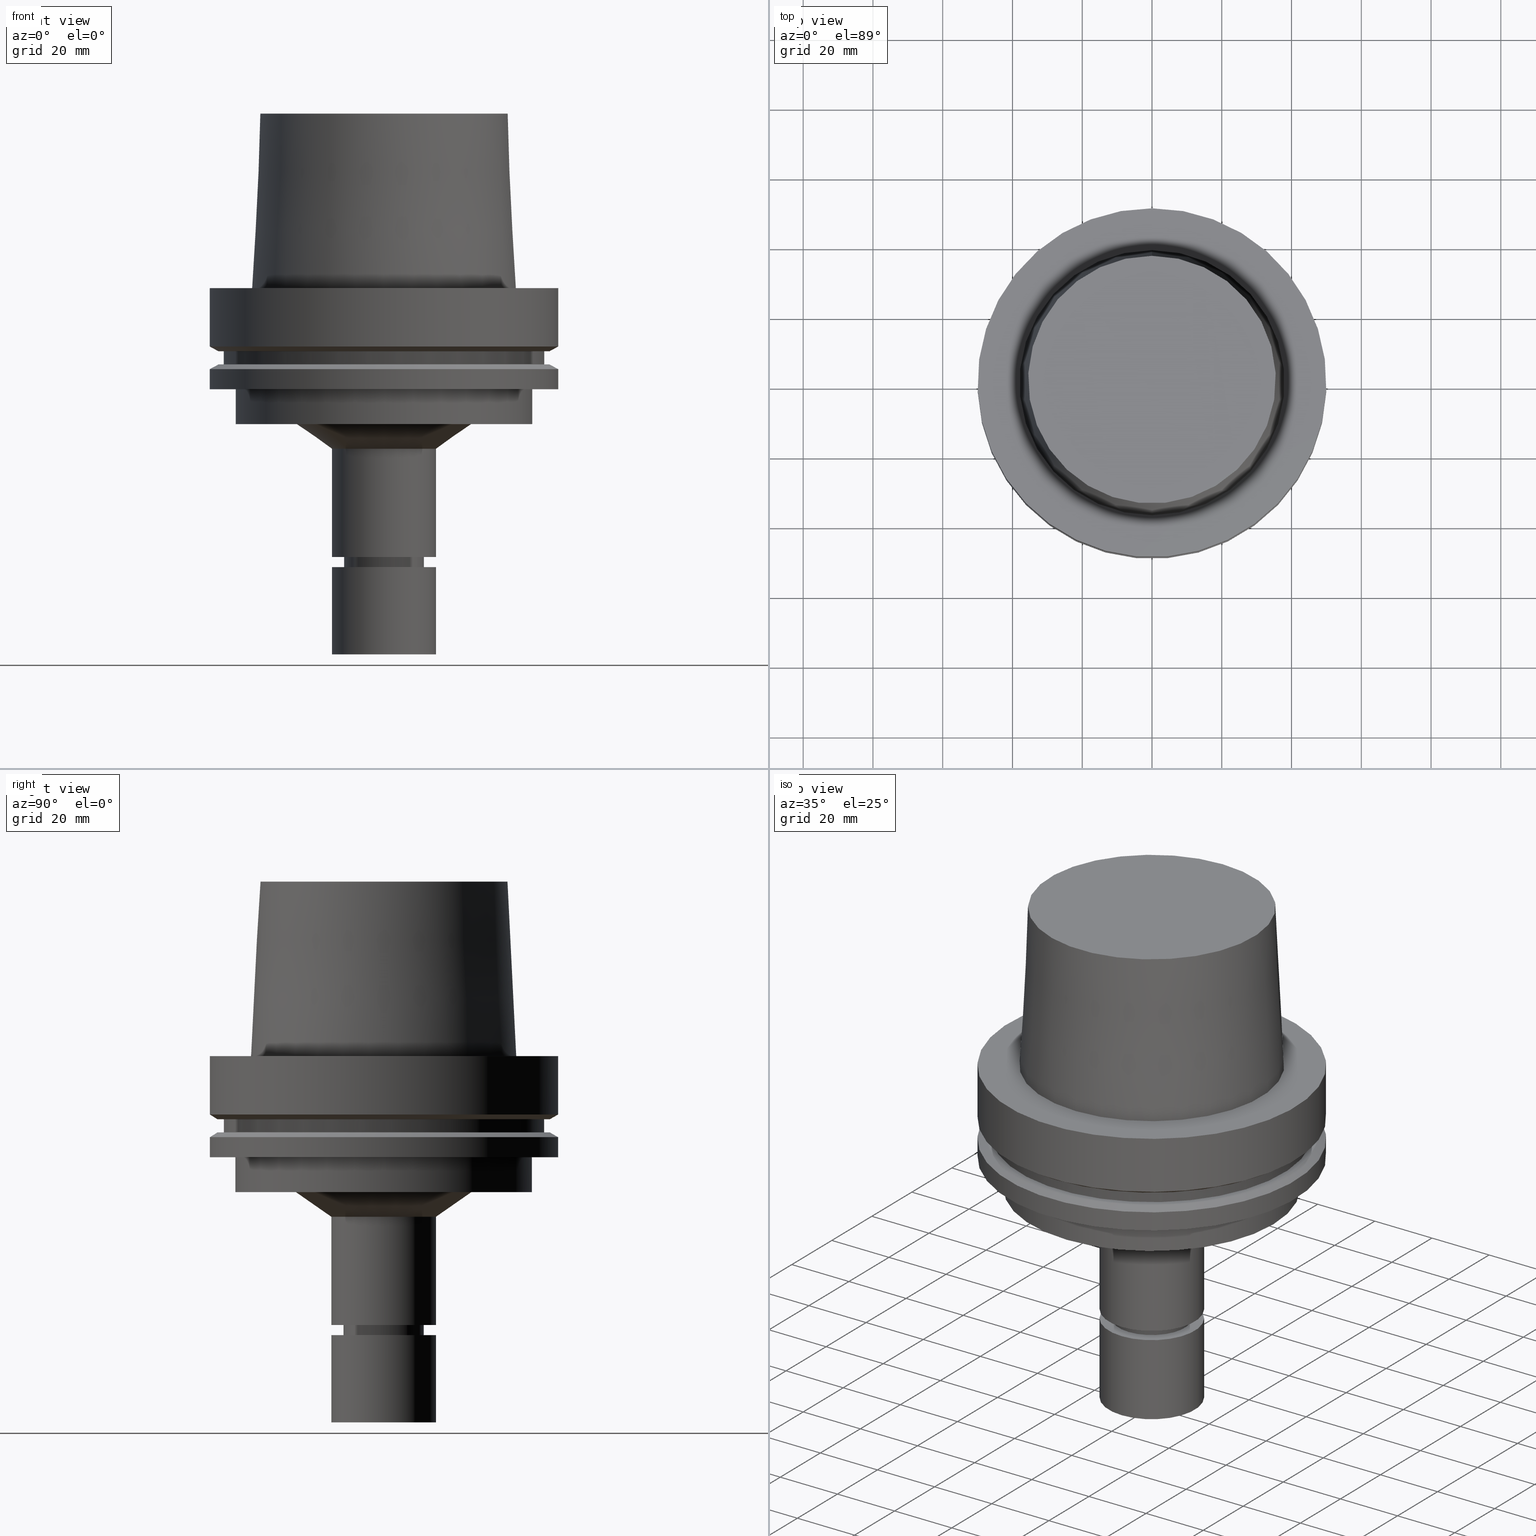
[diagram: canonical four-view strip — front | top / right | iso, engineering-drawing reading convention]
A machine part, canonical four-view strip (front | top / right | iso — engineering-drawing reading convention). The complete STEP part file that produces these views, byte-faithful:
ISO-10303-21;
HEADER;
FILE_DESCRIPTION((''),'1');
FILE_NAME('U:/Translate/02_3D_Field-HP\X2\FF71FF6FFF8CFF9F5916\X0\2013/02_Step_Field-HP\X2\FF71FF6FFF8CFF9F5916\X0\2013/HSK-A100-MEGAER16-105NL.stp','2016-06-22T01:12:14',(''),(''),'Spatial Interop R21 SP3','Kubotek KeyCreator 2011 V10.0.2 (22737)',' ');
FILE_SCHEMA(('automotive_design'));
ENDSEC;
DATA;
#1=MECHANICAL_DESIGN_GEOMETRIC_PRESENTATION_REPRESENTATION(' ',(#14,#15,#16,#17,#18,#19,#20,#21,#22,#23,#24,#25,#26,#27,#28,#29,#30,#31,#32,#33,#34,#35,#36,#37,#38,#39,#40,#41,#42,#43,#44,#45,#46,#47,#48,#49,#50,#51,#52,#53,#54,#55,#56,#57,#58,#59,#60,#61),#10);
#2=PRODUCT_DEFINITION_CONTEXT('',#62,'design');
#3=APPLICATION_PROTOCOL_DEFINITION('INTERNATIONAL STANDARD','automotive_design',1994,#62);
#4=PRODUCT_CATEGORY_RELATIONSHIP('NONE','NONE',#63,#64);
#5=SHAPE_DEFINITION_REPRESENTATION(#65,#66);
#6=PRODUCT_DEFINITION_CONTEXT('',#67,'design');
#7=APPLICATION_PROTOCOL_DEFINITION('INTERNATIONAL STANDARD','automotive_design',1994,#67);
#8=PRODUCT_CATEGORY_RELATIONSHIP('NONE','NONE',#68,#69);
#9=SHAPE_DEFINITION_REPRESENTATION(#70,#71);
#10= (GEOMETRIC_REPRESENTATION_CONTEXT(3)GLOBAL_UNCERTAINTY_ASSIGNED_CONTEXT((#74))GLOBAL_UNIT_ASSIGNED_CONTEXT((#76,#77,#78))REPRESENTATION_CONTEXT('NONE','WORKSPACE'));
#14=STYLED_ITEM('',(#80,#81),#82);
#15=STYLED_ITEM('',(#83),#84);
#16=STYLED_ITEM('',(#85,#86),#87);
#17=STYLED_ITEM('',(#88),#89);
#18=STYLED_ITEM('',(#90,#91),#92);
#19=STYLED_ITEM('',(#93),#94);
#20=STYLED_ITEM('',(#95,#96),#97);
#21=STYLED_ITEM('',(#98,#99),#100);
#22=STYLED_ITEM('',(#101,#102),#103);
#23=STYLED_ITEM('',(#104,#105),#106);
#24=STYLED_ITEM('',(#107,#108),#109);
#25=STYLED_ITEM('',(#110),#111);
#26=STYLED_ITEM('',(#112),#113);
#27=STYLED_ITEM('',(#114),#115);
#28=STYLED_ITEM('',(#116),#117);
#29=STYLED_ITEM('',(#118),#119);
#30=STYLED_ITEM('',(#120,#121),#122);
#31=STYLED_ITEM('',(#123,#124),#125);
#32=STYLED_ITEM('',(#126),#127);
#33=STYLED_ITEM('',(#128),#129);
#34=STYLED_ITEM('',(#130,#131),#132);
#35=STYLED_ITEM('',(#133),#134);
#36=STYLED_ITEM('',(#135),#136);
#37=STYLED_ITEM('',(#137,#138),#139);
#38=STYLED_ITEM('',(#140,#141),#142);
#39=STYLED_ITEM('',(#143,#144),#145);
#40=STYLED_ITEM('',(#146,#147),#148);
#41=STYLED_ITEM('',(#149,#150),#151);
#42=STYLED_ITEM('',(#152,#153),#154);
#43=STYLED_ITEM('',(#155,#156),#157);
#44=STYLED_ITEM('',(#158),#159);
#45=STYLED_ITEM('',(#160,#161),#162);
#46=STYLED_ITEM('',(#163),#164);
#47=STYLED_ITEM('',(#165),#166);
#48=STYLED_ITEM('',(#167,#168),#169);
#49=STYLED_ITEM('',(#170),#171);
#50=STYLED_ITEM('',(#172,#173),#174);
#51=STYLED_ITEM('',(#175,#176),#177);
#52=STYLED_ITEM('',(#178,#179),#180);
#53=STYLED_ITEM('',(#181,#182),#183);
#54=STYLED_ITEM('',(#184),#185);
#55=STYLED_ITEM('',(#186),#187);
#56=STYLED_ITEM('',(#188),#189);
#57=STYLED_ITEM('',(#190),#191);
#58=STYLED_ITEM('',(#192),#193);
#59=STYLED_ITEM('',(#194),#195);
#60=STYLED_ITEM('',(#196,#197),#198);
#61=STYLED_ITEM('',(#199,#200),#201);
#62=APPLICATION_CONTEXT(' ');
#63=PRODUCT_CATEGORY('part','NONE');
#64=PRODUCT_RELATED_PRODUCT_CATEGORY('detail',' ',(#202));
#65=PRODUCT_DEFINITION_SHAPE('NONE','NONE',#203);
#66=ADVANCED_BREP_SHAPE_REPRESENTATION('Unnamed[1]',(#132,#204),#10);
#67=APPLICATION_CONTEXT(' ');
#68=PRODUCT_CATEGORY('part','NONE');
#69=PRODUCT_RELATED_PRODUCT_CATEGORY('detail',' ',(#205));
#70=PRODUCT_DEFINITION_SHAPE('NONE','NONE',#206);
#71=ADVANCED_BREP_SHAPE_REPRESENTATION('Unnamed[1]',(#180,#207),#10);
#74=UNCERTAINTY_MEASURE_WITH_UNIT(LENGTH_MEASURE(1.0E-006),#76,'','');
#76= (CONVERSION_BASED_UNIT('MILLIMETRE',#210)LENGTH_UNIT()NAMED_UNIT(#213));
#77= (NAMED_UNIT(#215)PLANE_ANGLE_UNIT()SI_UNIT($,.RADIAN.));
#78= (NAMED_UNIT(#215)SOLID_ANGLE_UNIT()SI_UNIT($,.STERADIAN.));
#80=PRESENTATION_STYLE_ASSIGNMENT((#221));
#81=PRESENTATION_STYLE_ASSIGNMENT((#222));
#82=ADVANCED_FACE('Unnamed[1]',(#223,#224),#225,.T.);
#83=PRESENTATION_STYLE_ASSIGNMENT((#226));
#84=EDGE_CURVE('Unnamed[1]',#227,#227,#228,.T.);
#85=PRESENTATION_STYLE_ASSIGNMENT((#229));
#86=PRESENTATION_STYLE_ASSIGNMENT((#230));
#87=ADVANCED_FACE('Unnamed[1]',(#231),#232,.T.);
#88=PRESENTATION_STYLE_ASSIGNMENT((#233));
#89=EDGE_CURVE('Unnamed[1]',#234,#234,#235,.T.);
#90=PRESENTATION_STYLE_ASSIGNMENT((#236));
#91=PRESENTATION_STYLE_ASSIGNMENT((#237));
#92=ADVANCED_FACE('Unnamed[1]',(#238,#239),#240,.T.);
#93=PRESENTATION_STYLE_ASSIGNMENT((#241));
#94=EDGE_CURVE('Unnamed[1]',#242,#242,#243,.T.);
#95=PRESENTATION_STYLE_ASSIGNMENT((#244));
#96=PRESENTATION_STYLE_ASSIGNMENT((#245));
#97=ADVANCED_FACE('Unnamed[1]',(#246,#247),#248,.T.);
#98=PRESENTATION_STYLE_ASSIGNMENT((#249));
#99=PRESENTATION_STYLE_ASSIGNMENT((#250));
#100=ADVANCED_FACE('Unnamed[1]',(#251,#252),#253,.T.);
#101=PRESENTATION_STYLE_ASSIGNMENT((#254));
#102=PRESENTATION_STYLE_ASSIGNMENT((#255));
#103=ADVANCED_FACE('Unnamed[1]',(#256),#257,.T.);
#104=PRESENTATION_STYLE_ASSIGNMENT((#258));
#105=PRESENTATION_STYLE_ASSIGNMENT((#259));
#106=ADVANCED_FACE('Unnamed[1]',(#260,#261),#262,.T.);
#107=PRESENTATION_STYLE_ASSIGNMENT((#263));
#108=PRESENTATION_STYLE_ASSIGNMENT((#264));
#109=ADVANCED_FACE('Unnamed[1]',(#265,#266),#267,.T.);
#110=PRESENTATION_STYLE_ASSIGNMENT((#268));
#111=EDGE_CURVE('Unnamed[1]',#269,#269,#270,.T.);
#112=PRESENTATION_STYLE_ASSIGNMENT((#271));
#113=EDGE_CURVE('Unnamed[1]',#272,#272,#273,.T.);
#114=PRESENTATION_STYLE_ASSIGNMENT((#274));
#115=EDGE_CURVE('Unnamed[1]',#275,#275,#276,.T.);
#116=PRESENTATION_STYLE_ASSIGNMENT((#277));
#117=EDGE_CURVE('Unnamed[1]',#278,#278,#279,.T.);
#118=PRESENTATION_STYLE_ASSIGNMENT((#280));
#119=EDGE_CURVE('Unnamed[1]',#281,#281,#282,.T.);
#120=PRESENTATION_STYLE_ASSIGNMENT((#283));
#121=PRESENTATION_STYLE_ASSIGNMENT((#284));
#122=ADVANCED_FACE('Unnamed[1]',(#285,#286),#287,.T.);
#123=PRESENTATION_STYLE_ASSIGNMENT((#288));
#124=PRESENTATION_STYLE_ASSIGNMENT((#289));
#125=ADVANCED_FACE('Unnamed[1]',(#290,#291),#292,.T.);
#126=PRESENTATION_STYLE_ASSIGNMENT((#293));
#127=EDGE_CURVE('Unnamed[1]',#294,#294,#295,.T.);
#128=PRESENTATION_STYLE_ASSIGNMENT((#296));
#129=EDGE_CURVE('Unnamed[1]',#297,#297,#298,.T.);
#130=PRESENTATION_STYLE_ASSIGNMENT((#299));
#131=PRESENTATION_STYLE_ASSIGNMENT((#300));
#132=MANIFOLD_SOLID_BREP('Unnamed[1]',#301);
#133=PRESENTATION_STYLE_ASSIGNMENT((#302));
#134=EDGE_CURVE('Unnamed[1]',#303,#303,#304,.T.);
#135=PRESENTATION_STYLE_ASSIGNMENT((#305));
#136=EDGE_CURVE('Unnamed[1]',#306,#306,#307,.T.);
#137=PRESENTATION_STYLE_ASSIGNMENT((#308));
#138=PRESENTATION_STYLE_ASSIGNMENT((#309));
#139=ADVANCED_FACE('Unnamed[1]',(#310,#311),#312,.T.);
#140=PRESENTATION_STYLE_ASSIGNMENT((#313));
#141=PRESENTATION_STYLE_ASSIGNMENT((#314));
#142=ADVANCED_FACE('Unnamed[1]',(#315,#316),#317,.T.);
#143=PRESENTATION_STYLE_ASSIGNMENT((#318));
#144=PRESENTATION_STYLE_ASSIGNMENT((#319));
#145=ADVANCED_FACE('Unnamed[1]',(#320,#321),#322,.T.);
#146=PRESENTATION_STYLE_ASSIGNMENT((#323));
#147=PRESENTATION_STYLE_ASSIGNMENT((#324));
#148=ADVANCED_FACE('Unnamed[1]',(#325,#326),#327,.T.);
#149=PRESENTATION_STYLE_ASSIGNMENT((#328));
#150=PRESENTATION_STYLE_ASSIGNMENT((#329));
#151=ADVANCED_FACE('Unnamed[1]',(#330,#331),#332,.T.);
#152=PRESENTATION_STYLE_ASSIGNMENT((#333));
#153=PRESENTATION_STYLE_ASSIGNMENT((#334));
#154=ADVANCED_FACE('Unnamed[1]',(#335),#336,.T.);
#155=PRESENTATION_STYLE_ASSIGNMENT((#337));
#156=PRESENTATION_STYLE_ASSIGNMENT((#338));
#157=ADVANCED_FACE('Unnamed[1]',(#339,#340),#341,.T.);
#158=PRESENTATION_STYLE_ASSIGNMENT((#342));
#159=EDGE_CURVE('Unnamed[1]',#343,#343,#344,.T.);
#160=PRESENTATION_STYLE_ASSIGNMENT((#345));
#161=PRESENTATION_STYLE_ASSIGNMENT((#346));
#162=ADVANCED_FACE('Unnamed[1]',(#347,#348),#349,.T.);
#163=PRESENTATION_STYLE_ASSIGNMENT((#350));
#164=EDGE_CURVE('Unnamed[1]',#351,#351,#352,.T.);
#165=PRESENTATION_STYLE_ASSIGNMENT((#353));
#166=EDGE_CURVE('Unnamed[1]',#354,#354,#355,.T.);
#167=PRESENTATION_STYLE_ASSIGNMENT((#356));
#168=PRESENTATION_STYLE_ASSIGNMENT((#357));
#169=ADVANCED_FACE('Unnamed[1]',(#358,#359),#360,.T.);
#170=PRESENTATION_STYLE_ASSIGNMENT((#361));
#171=EDGE_CURVE('Unnamed[1]',#362,#362,#363,.T.);
#172=PRESENTATION_STYLE_ASSIGNMENT((#364));
#173=PRESENTATION_STYLE_ASSIGNMENT((#365));
#174=ADVANCED_FACE('Unnamed[1]',(#366),#367,.T.);
#175=PRESENTATION_STYLE_ASSIGNMENT((#368));
#176=PRESENTATION_STYLE_ASSIGNMENT((#369));
#177=ADVANCED_FACE('Unnamed[1]',(#370,#371),#372,.T.);
#178=PRESENTATION_STYLE_ASSIGNMENT((#373));
#179=PRESENTATION_STYLE_ASSIGNMENT((#374));
#180=MANIFOLD_SOLID_BREP('Unnamed[1]',#375);
#181=PRESENTATION_STYLE_ASSIGNMENT((#376));
#182=PRESENTATION_STYLE_ASSIGNMENT((#377));
#183=ADVANCED_FACE('Unnamed[1]',(#378,#379),#380,.T.);
#184=PRESENTATION_STYLE_ASSIGNMENT((#381));
#185=EDGE_CURVE('Unnamed[1]',#382,#382,#383,.T.);
#186=PRESENTATION_STYLE_ASSIGNMENT((#384));
#187=EDGE_CURVE('Unnamed[1]',#385,#385,#386,.T.);
#188=PRESENTATION_STYLE_ASSIGNMENT((#387));
#189=EDGE_CURVE('Unnamed[1]',#388,#388,#389,.T.);
#190=PRESENTATION_STYLE_ASSIGNMENT((#390));
#191=EDGE_CURVE('Unnamed[1]',#391,#391,#392,.T.);
#192=PRESENTATION_STYLE_ASSIGNMENT((#393));
#193=EDGE_CURVE('Unnamed[1]',#394,#394,#395,.T.);
#194=PRESENTATION_STYLE_ASSIGNMENT((#396));
#195=EDGE_CURVE('Unnamed[1]',#397,#397,#398,.T.);
#196=PRESENTATION_STYLE_ASSIGNMENT((#399));
#197=PRESENTATION_STYLE_ASSIGNMENT((#400));
#198=ADVANCED_FACE('Unnamed[1]',(#401,#402),#403,.T.);
#199=PRESENTATION_STYLE_ASSIGNMENT((#404));
#200=PRESENTATION_STYLE_ASSIGNMENT((#405));
#201=ADVANCED_FACE('Unnamed[1]',(#406,#407),#408,.T.);
#202=PRODUCT('Unnamed[1]','Unnamed[1]','PART-Unnamed[1]-DESC',(#409));
#203=PRODUCT_DEFINITION('NONE','NONE',#410,#2);
#204=AXIS2_PLACEMENT_3D('',#411,#412,#413);
#205=PRODUCT('Unnamed[1]','Unnamed[1]','PART-Unnamed[1]-DESC',(#414));
#206=PRODUCT_DEFINITION('NONE','NONE',#415,#6);
#207=AXIS2_PLACEMENT_3D('',#416,#417,#418);
#210=LENGTH_MEASURE_WITH_UNIT(LENGTH_MEASURE(1.0),#419);
#213=DIMENSIONAL_EXPONENTS(1.0,0.0,0.0,0.0,0.0,0.0,0.0);
#215=DIMENSIONAL_EXPONENTS(0.0,0.0,0.0,0.0,0.0,0.0,0.0);
#221=SURFACE_STYLE_USAGE(.BOTH.,#420);
#222=CURVE_STYLE('',#421,POSITIVE_LENGTH_MEASURE(1000.0),#422);
#223=FACE_BOUND('',#423,.T.);
#224=FACE_BOUND('',#424,.T.);
#225=CYLINDRICAL_SURFACE('',#425,15.0);
#226=CURVE_STYLE('',#426,POSITIVE_LENGTH_MEASURE(1000.0),#427);
#227=VERTEX_POINT('',#428);
#228=CIRCLE('',#429,50.0);
#229=SURFACE_STYLE_USAGE(.BOTH.,#430);
#230=CURVE_STYLE('',#431,POSITIVE_LENGTH_MEASURE(1000.0),#432);
#231=FACE_OUTER_BOUND('',#433,.T.);
#232=PLANE('',#434);
#233=CURVE_STYLE('',#435,POSITIVE_LENGTH_MEASURE(1000.0),#436);
#234=VERTEX_POINT('',#437);
#235=CIRCLE('',#438,15.0000000000001);
#236=SURFACE_STYLE_USAGE(.BOTH.,#439);
#237=CURVE_STYLE('',#440,POSITIVE_LENGTH_MEASURE(1000.0),#441);
#238=FACE_BOUND('',#442,.T.);
#239=FACE_BOUND('',#443,.T.);
#240=CYLINDRICAL_SURFACE('',#444,11.0000000000001);
#241=CURVE_STYLE('',#445,POSITIVE_LENGTH_MEASURE(1000.0),#446);
#242=VERTEX_POINT('',#447);
#243=CIRCLE('',#448,11.5000000000021);
#244=SURFACE_STYLE_USAGE(.BOTH.,#449);
#245=CURVE_STYLE('',#450,POSITIVE_LENGTH_MEASURE(1000.0),#451);
#246=FACE_OUTER_BOUND('',#452,.T.);
#247=FACE_BOUND('',#453,.T.);
#248=PLANE('',#454);
#249=SURFACE_STYLE_USAGE(.BOTH.,#455);
#250=CURVE_STYLE('',#456,POSITIVE_LENGTH_MEASURE(1000.0),#457);
#251=FACE_BOUND('',#458,.T.);
#252=FACE_BOUND('',#459,.T.);
#253=CONICAL_SURFACE('',#460,48.81129763,1.04719755328238);
#254=SURFACE_STYLE_USAGE(.BOTH.,#461);
#255=CURVE_STYLE('',#462,POSITIVE_LENGTH_MEASURE(1000.0),#463);
#256=FACE_OUTER_BOUND('',#464,.T.);
#257=PLANE('',#465);
#258=SURFACE_STYLE_USAGE(.BOTH.,#466);
#259=CURVE_STYLE('',#467,POSITIVE_LENGTH_MEASURE(1000.0),#468);
#260=FACE_BOUND('',#469,.T.);
#261=FACE_BOUND('',#470,.T.);
#262=CYLINDRICAL_SURFACE('',#471,50.0);
#263=SURFACE_STYLE_USAGE(.BOTH.,#472);
#264=CURVE_STYLE('',#473,POSITIVE_LENGTH_MEASURE(1000.0),#474);
#265=FACE_BOUND('',#475,.T.);
#266=FACE_BOUND('',#476,.T.);
#267=CONICAL_SURFACE('',#477,11.250000000001,0.766162649701775);
#268=CURVE_STYLE('',#478,POSITIVE_LENGTH_MEASURE(1000.0),#479);
#269=VERTEX_POINT('',#480);
#270=CIRCLE('',#481,46.0);
#271=CURVE_STYLE('',#482,POSITIVE_LENGTH_MEASURE(1000.0),#483);
#272=VERTEX_POINT('',#484);
#273=CIRCLE('',#485,42.5);
#274=CURVE_STYLE('',#486,POSITIVE_LENGTH_MEASURE(1000.0),#487);
#275=VERTEX_POINT('',#488);
#276=CIRCLE('',#489,25.1435726714537);
#277=CURVE_STYLE('',#490,POSITIVE_LENGTH_MEASURE(1000.0),#491);
#278=VERTEX_POINT('',#492);
#279=CIRCLE('',#493,11.0000000000003);
#280=CURVE_STYLE('',#494,POSITIVE_LENGTH_MEASURE(1000.0),#495);
#281=VERTEX_POINT('',#496);
#282=CIRCLE('',#497,9.89999999999962);
#283=SURFACE_STYLE_USAGE(.BOTH.,#498);
#284=CURVE_STYLE('',#499,POSITIVE_LENGTH_MEASURE(1000.0),#500);
#285=FACE_BOUND('',#501,.T.);
#286=FACE_BOUND('',#502,.T.);
#287=CYLINDRICAL_SURFACE('',#503,11.4999999999964);
#288=SURFACE_STYLE_USAGE(.BOTH.,#504);
#289=CURVE_STYLE('',#505,POSITIVE_LENGTH_MEASURE(1000.0),#506);
#290=FACE_BOUND('',#507,.T.);
#291=FACE_BOUND('',#508,.T.);
#292=CONICAL_SURFACE('',#509,20.0717863357269,0.962446965068553);
#293=CURVE_STYLE('',#510,POSITIVE_LENGTH_MEASURE(1000.0),#511);
#294=VERTEX_POINT('',#512);
#295=CIRCLE('',#513,50.0);
#296=CURVE_STYLE('',#514,POSITIVE_LENGTH_MEASURE(1000.0),#515);
#297=VERTEX_POINT('',#516);
#298=CIRCLE('',#517,42.5);
#299=SURFACE_STYLE_USAGE(.BOTH.,#518);
#300=CURVE_STYLE('',#519,POSITIVE_LENGTH_MEASURE(1000.0),#520);
#301=CLOSED_SHELL('',(#103,#198,#97,#162,#100,#177,#139,#148,#151,#106,#183,#142,#157,#125,#145,#201,#122,#109,#92,#169,#87));
#302=CURVE_STYLE('',#521,POSITIVE_LENGTH_MEASURE(1000.0),#522);
#303=VERTEX_POINT('',#523);
#304=CIRCLE('',#524,15.0);
#305=CURVE_STYLE('',#525,POSITIVE_LENGTH_MEASURE(1000.0),#526);
#306=VERTEX_POINT('',#527);
#307=CIRCLE('',#528,50.0);
#308=SURFACE_STYLE_USAGE(.BOTH.,#529);
#309=CURVE_STYLE('',#530,POSITIVE_LENGTH_MEASURE(1000.0),#531);
#310=FACE_BOUND('',#532,.T.);
#311=FACE_BOUND('',#533,.T.);
#312=CYLINDRICAL_SURFACE('',#534,46.0);
#313=SURFACE_STYLE_USAGE(.BOTH.,#535);
#314=CURVE_STYLE('',#536,POSITIVE_LENGTH_MEASURE(1000.0),#537);
#315=FACE_BOUND('',#538,.T.);
#316=FACE_BOUND('',#539,.T.);
#317=CYLINDRICAL_SURFACE('',#540,42.5);
#318=SURFACE_STYLE_USAGE(.BOTH.,#541);
#319=CURVE_STYLE('',#542,POSITIVE_LENGTH_MEASURE(1000.0),#543);
#320=FACE_BOUND('',#544,.T.);
#321=FACE_BOUND('',#545,.T.);
#322=CYLINDRICAL_SURFACE('',#546,15.0);
#323=SURFACE_STYLE_USAGE(.BOTH.,#547);
#324=CURVE_STYLE('',#548,POSITIVE_LENGTH_MEASURE(1000.0),#549);
#325=FACE_OUTER_BOUND('',#550,.T.);
#326=FACE_BOUND('',#551,.T.);
#327=PLANE('',#552);
#328=SURFACE_STYLE_USAGE(.BOTH.,#553);
#329=CURVE_STYLE('',#554,POSITIVE_LENGTH_MEASURE(1000.0),#555);
#330=FACE_BOUND('',#556,.T.);
#331=FACE_BOUND('',#557,.T.);
#332=CONICAL_SURFACE('',#558,48.81129763,1.04719755328238);
#333=SURFACE_STYLE_USAGE(.BOTH.,#559);
#334=CURVE_STYLE('',#560,POSITIVE_LENGTH_MEASURE(1000.0),#561);
#335=FACE_OUTER_BOUND('',#562,.T.);
#336=PLANE('',#563);
#337=SURFACE_STYLE_USAGE(.BOTH.,#564);
#338=CURVE_STYLE('',#565,POSITIVE_LENGTH_MEASURE(1000.0),#566);
#339=FACE_BOUND('',#567,.T.);
#340=FACE_OUTER_BOUND('',#568,.T.);
#341=PLANE('',#569);
#342=CURVE_STYLE('',#570,POSITIVE_LENGTH_MEASURE(1000.0),#571);
#343=VERTEX_POINT('',#572);
#344=CIRCLE('',#573,37.9999999999349);
#345=SURFACE_STYLE_USAGE(.BOTH.,#574);
#346=CURVE_STYLE('',#575,POSITIVE_LENGTH_MEASURE(1000.0),#576);
#347=FACE_BOUND('',#577,.T.);
#348=FACE_BOUND('',#578,.T.);
#349=CYLINDRICAL_SURFACE('',#579,50.0);
#350=CURVE_STYLE('',#580,POSITIVE_LENGTH_MEASURE(1000.0),#581);
#351=VERTEX_POINT('',#582);
#352=CIRCLE('',#583,50.0);
#353=CURVE_STYLE('',#584,POSITIVE_LENGTH_MEASURE(1000.0),#585);
#354=VERTEX_POINT('',#586);
#355=CIRCLE('',#587,15.0);
#356=SURFACE_STYLE_USAGE(.BOTH.,#588);
#357=CURVE_STYLE('',#589,POSITIVE_LENGTH_MEASURE(1000.0),#590);
#358=FACE_BOUND('',#591,.T.);
#359=FACE_BOUND('',#592,.T.);
#360=CONICAL_SURFACE('',#593,10.4499999999999,0.523598775598215);
#361=CURVE_STYLE('',#594,POSITIVE_LENGTH_MEASURE(1000.0),#595);
#362=VERTEX_POINT('',#596);
#363=CIRCLE('',#597,10.9999999999999);
#364=SURFACE_STYLE_USAGE(.BOTH.,#598);
#365=CURVE_STYLE('',#599,POSITIVE_LENGTH_MEASURE(1000.0),#600);
#366=FACE_OUTER_BOUND('',#601,.T.);
#367=PLANE('',#602);
#368=SURFACE_STYLE_USAGE(.BOTH.,#603);
#369=CURVE_STYLE('',#604,POSITIVE_LENGTH_MEASURE(1000.0),#605);
#370=FACE_BOUND('',#606,.T.);
#371=FACE_OUTER_BOUND('',#607,.T.);
#372=PLANE('',#608);
#373=SURFACE_STYLE_USAGE(.BOTH.,#609);
#374=CURVE_STYLE('',#610,POSITIVE_LENGTH_MEASURE(1000.0),#611);
#375=CLOSED_SHELL('',(#174,#154,#82));
#376=SURFACE_STYLE_USAGE(.BOTH.,#612);
#377=CURVE_STYLE('',#613,POSITIVE_LENGTH_MEASURE(1000.0),#614);
#378=FACE_BOUND('',#615,.T.);
#379=FACE_OUTER_BOUND('',#616,.T.);
#380=PLANE('',#617);
#381=CURVE_STYLE('',#618,POSITIVE_LENGTH_MEASURE(1000.0),#619);
#382=VERTEX_POINT('',#620);
#383=CIRCLE('',#621,47.62259526);
#384=CURVE_STYLE('',#622,POSITIVE_LENGTH_MEASURE(1000.0),#623);
#385=VERTEX_POINT('',#624);
#386=CIRCLE('',#625,47.62259526);
#387=CURVE_STYLE('',#626,POSITIVE_LENGTH_MEASURE(1000.0),#627);
#388=VERTEX_POINT('',#628);
#389=CIRCLE('',#629,15.0);
#390=CURVE_STYLE('',#630,POSITIVE_LENGTH_MEASURE(1000.0),#631);
#391=VERTEX_POINT('',#632);
#392=CIRCLE('',#633,11.4999999999907);
#393=CURVE_STYLE('',#634,POSITIVE_LENGTH_MEASURE(1000.0),#635);
#394=VERTEX_POINT('',#636);
#395=CIRCLE('',#637,46.0);
#396=CURVE_STYLE('',#638,POSITIVE_LENGTH_MEASURE(1000.0),#639);
#397=VERTEX_POINT('',#640);
#398=CIRCLE('',#641,35.5000000015618);
#399=SURFACE_STYLE_USAGE(.BOTH.,#642);
#400=CURVE_STYLE('',#643,POSITIVE_LENGTH_MEASURE(1000.0),#644);
#401=FACE_BOUND('',#645,.T.);
#402=FACE_BOUND('',#646,.T.);
#403=CONICAL_SURFACE('',#647,36.7500000007484,0.0499583956894843);
#404=SURFACE_STYLE_USAGE(.BOTH.,#648);
#405=CURVE_STYLE('',#649,POSITIVE_LENGTH_MEASURE(1000.0),#650);
#406=FACE_BOUND('',#651,.T.);
#407=FACE_OUTER_BOUND('',#652,.T.);
#408=PLANE('',#653);
#409=PRODUCT_CONTEXT('',#62,'mechanical');
#410=PRODUCT_DEFINITION_FORMATION_WITH_SPECIFIED_SOURCE(' ','NONE',#202,.NOT_KNOWN.);
#411=CARTESIAN_POINT('',(0.0,0.0,0.0));
#412=DIRECTION('',(0.0,0.0,1.0));
#413=DIRECTION('',(1.0,0.0,0.0));
#414=PRODUCT_CONTEXT('',#67,'mechanical');
#415=PRODUCT_DEFINITION_FORMATION_WITH_SPECIFIED_SOURCE(' ','NONE',#205,.NOT_KNOWN.);
#416=CARTESIAN_POINT('',(0.0,0.0,0.0));
#417=DIRECTION('',(0.0,0.0,1.0));
#418=DIRECTION('',(1.0,0.0,0.0));
#419= (NAMED_UNIT(#213)LENGTH_UNIT()SI_UNIT(.MILLI.,.METRE.));
#420=SURFACE_SIDE_STYLE('',(#655));
#421=DRAUGHTING_PRE_DEFINED_CURVE_FONT('continuous');
#422=COLOUR_RGB('',0.0,1.0,0.0);
#423=EDGE_LOOP('',(#656));
#424=EDGE_LOOP('',(#657));
#425=AXIS2_PLACEMENT_3D('',#658,#659,#660);
#426=DRAUGHTING_PRE_DEFINED_CURVE_FONT('continuous');
#427=COLOUR_RGB('',0.0,1.0,0.0);
#428=CARTESIAN_POINT('',(1.0257889421431E-015,50.0,-16.75240474));
#429=AXIS2_PLACEMENT_3D('',#661,#662,#663);
#430=SURFACE_SIDE_STYLE('',(#664));
#431=DRAUGHTING_PRE_DEFINED_CURVE_FONT('continuous');
#432=COLOUR_RGB('',0.0,1.0,0.0);
#433=EDGE_LOOP('',(#665));
#434=AXIS2_PLACEMENT_3D('',#666,#667,#668);
#435=DRAUGHTING_PRE_DEFINED_CURVE_FONT('continuous');
#436=COLOUR_RGB('',0.0,1.0,0.0);
#437=CARTESIAN_POINT('',(4.89858719658941E-015,15.0000000000001,-80.0));
#438=AXIS2_PLACEMENT_3D('',#669,#670,#671);
#439=SURFACE_SIDE_STYLE('',(#672));
#440=DRAUGHTING_PRE_DEFINED_CURVE_FONT('continuous');
#441=COLOUR_RGB('',0.0,1.0,0.0);
#442=EDGE_LOOP('',(#673));
#443=EDGE_LOOP('',(#674));
#444=AXIS2_PLACEMENT_3D('',#675,#676,#677);
#445=DRAUGHTING_PRE_DEFINED_CURVE_FONT('continuous');
#446=COLOUR_RGB('',0.0,1.0,0.0);
#447=CARTESIAN_POINT('',(5.07685443047439E-015,11.5000000000021,-82.9113248654076));
#448=AXIS2_PLACEMENT_3D('',#678,#679,#680);
#449=SURFACE_SIDE_STYLE('',(#681));
#450=DRAUGHTING_PRE_DEFINED_CURVE_FONT('continuous');
#451=COLOUR_RGB('',0.0,1.0,0.0);
#452=EDGE_LOOP('',(#682));
#453=EDGE_LOOP('',(#683));
#454=AXIS2_PLACEMENT_3D('',#684,#685,#686);
#455=SURFACE_SIDE_STYLE('',(#687));
#456=DRAUGHTING_PRE_DEFINED_CURVE_FONT('continuous');
#457=COLOUR_RGB('',0.0,1.0,0.0);
#458=EDGE_LOOP('',(#688));
#459=EDGE_LOOP('',(#689));
#460=AXIS2_PLACEMENT_3D('',#690,#691,#692);
#461=SURFACE_SIDE_STYLE('',(#693));
#462=DRAUGHTING_PRE_DEFINED_CURVE_FONT('continuous');
#463=COLOUR_RGB('',0.0,1.0,0.0);
#464=EDGE_LOOP('',(#694));
#465=AXIS2_PLACEMENT_3D('',#695,#696,#697);
#466=SURFACE_SIDE_STYLE('',(#698));
#467=DRAUGHTING_PRE_DEFINED_CURVE_FONT('continuous');
#468=COLOUR_RGB('',0.0,1.0,0.0);
#469=EDGE_LOOP('',(#699));
#470=EDGE_LOOP('',(#700));
#471=AXIS2_PLACEMENT_3D('',#701,#702,#703);
#472=SURFACE_SIDE_STYLE('',(#704));
#473=DRAUGHTING_PRE_DEFINED_CURVE_FONT('continuous');
#474=COLOUR_RGB('',0.0,1.0,0.0);
#475=EDGE_LOOP('',(#705));
#476=EDGE_LOOP('',(#706));
#477=AXIS2_PLACEMENT_3D('',#707,#708,#709);
#478=DRAUGHTING_PRE_DEFINED_CURVE_FONT('continuous');
#479=COLOUR_RGB('',0.0,1.0,0.0);
#480=CARTESIAN_POINT('',(1.33945743656742E-015,46.0,-21.875));
#481=AXIS2_PLACEMENT_3D('',#710,#711,#712);
#482=DRAUGHTING_PRE_DEFINED_CURVE_FONT('continuous');
#483=COLOUR_RGB('',0.0,1.0,0.0);
#484=CARTESIAN_POINT('',(2.38806125833734E-015,42.5,-39.0));
#485=AXIS2_PLACEMENT_3D('',#713,#714,#715);
#486=DRAUGHTING_PRE_DEFINED_CURVE_FONT('continuous');
#487=COLOUR_RGB('',0.0,1.0,0.0);
#488=CARTESIAN_POINT('',(2.38806125833734E-015,25.1435726714537,-39.0));
#489=AXIS2_PLACEMENT_3D('',#716,#717,#718);
#490=DRAUGHTING_PRE_DEFINED_CURVE_FONT('continuous');
#491=COLOUR_RGB('',0.0,1.0,0.0);
#492=CARTESIAN_POINT('',(5.77388782763889E-015,11.0000000000003,-94.2947441116719));
#493=AXIS2_PLACEMENT_3D('',#719,#720,#721);
#494=DRAUGHTING_PRE_DEFINED_CURVE_FONT('continuous');
#495=COLOUR_RGB('',0.0,1.0,0.0);
#496=CARTESIAN_POINT('',(5.89055110389872E-015,9.89999999999963,-96.1999999999991));
#497=AXIS2_PLACEMENT_3D('',#722,#723,#724);
#498=SURFACE_SIDE_STYLE('',(#725));
#499=DRAUGHTING_PRE_DEFINED_CURVE_FONT('continuous');
#500=COLOUR_RGB('',0.0,1.0,0.0);
#501=EDGE_LOOP('',(#726));
#502=EDGE_LOOP('',(#727));
#503=AXIS2_PLACEMENT_3D('',#728,#729,#730);
#504=SURFACE_SIDE_STYLE('',(#731));
#505=DRAUGHTING_PRE_DEFINED_CURVE_FONT('continuous');
#506=COLOUR_RGB('',0.0,1.0,0.0);
#507=EDGE_LOOP('',(#732));
#508=EDGE_LOOP('',(#733));
#509=AXIS2_PLACEMENT_3D('',#734,#735,#736);
#510=DRAUGHTING_PRE_DEFINED_CURVE_FONT('continuous');
#511=COLOUR_RGB('',0.0,1.0,0.0);
#512=CARTESIAN_POINT('',(1.77573785876366E-015,50.0,-29.0));
#513=AXIS2_PLACEMENT_3D('',#737,#738,#739);
#514=DRAUGHTING_PRE_DEFINED_CURVE_FONT('continuous');
#515=COLOUR_RGB('',0.0,1.0,0.0);
#516=CARTESIAN_POINT('',(1.77573785876366E-015,42.5,-29.0));
#517=AXIS2_PLACEMENT_3D('',#740,#741,#742);
#518=SURFACE_SIDE_STYLE('',(#743));
#519=DRAUGHTING_PRE_DEFINED_CURVE_FONT('continuous');
#520=COLOUR_RGB('',0.0,1.0,0.0);
#521=DRAUGHTING_PRE_DEFINED_CURVE_FONT('continuous');
#522=COLOUR_RGB('',0.0,1.0,0.0);
#523=CARTESIAN_POINT('',(6.4293956955236E-015,15.0,-105.0));
#524=AXIS2_PLACEMENT_3D('',#744,#745,#746);
#525=DRAUGHTING_PRE_DEFINED_CURVE_FONT('continuous');
#526=COLOUR_RGB('',0.0,1.0,0.0);
#527=CARTESIAN_POINT('',(-1.81547968506605E-031,50.0,-9.76766004263236E-016));
#528=AXIS2_PLACEMENT_3D('',#747,#748,#749);
#529=SURFACE_SIDE_STYLE('',(#750));
#530=DRAUGHTING_PRE_DEFINED_CURVE_FONT('continuous');
#531=COLOUR_RGB('',0.0,1.0,0.0);
#532=EDGE_LOOP('',(#751));
#533=EDGE_LOOP('',(#752));
#534=AXIS2_PLACEMENT_3D('',#753,#754,#755);
#535=SURFACE_SIDE_STYLE('',(#756));
#536=DRAUGHTING_PRE_DEFINED_CURVE_FONT('continuous');
#537=COLOUR_RGB('',0.0,1.0,0.0);
#538=EDGE_LOOP('',(#757));
#539=EDGE_LOOP('',(#758));
#540=AXIS2_PLACEMENT_3D('',#759,#760,#761);
#541=SURFACE_SIDE_STYLE('',(#762));
#542=DRAUGHTING_PRE_DEFINED_CURVE_FONT('continuous');
#543=COLOUR_RGB('',0.0,1.0,0.0);
#544=EDGE_LOOP('',(#763));
#545=EDGE_LOOP('',(#764));
#546=AXIS2_PLACEMENT_3D('',#765,#766,#767);
#547=SURFACE_SIDE_STYLE('',(#768));
#548=DRAUGHTING_PRE_DEFINED_CURVE_FONT('continuous');
#549=COLOUR_RGB('',0.0,1.0,0.0);
#550=EDGE_LOOP('',(#769));
#551=EDGE_LOOP('',(#770));
#552=AXIS2_PLACEMENT_3D('',#771,#772,#773);
#553=SURFACE_SIDE_STYLE('',(#774));
#554=DRAUGHTING_PRE_DEFINED_CURVE_FONT('continuous');
#555=COLOUR_RGB('',0.0,1.0,0.0);
#556=EDGE_LOOP('',(#775));
#557=EDGE_LOOP('',(#776));
#558=AXIS2_PLACEMENT_3D('',#777,#778,#779);
#559=SURFACE_SIDE_STYLE('',(#780));
#560=DRAUGHTING_PRE_DEFINED_CURVE_FONT('continuous');
#561=COLOUR_RGB('',0.0,1.0,0.0);
#562=EDGE_LOOP('',(#781));
#563=AXIS2_PLACEMENT_3D('',#782,#783,#784);
#564=SURFACE_SIDE_STYLE('',(#785));
#565=DRAUGHTING_PRE_DEFINED_CURVE_FONT('continuous');
#566=COLOUR_RGB('',0.0,1.0,0.0);
#567=EDGE_LOOP('',(#786));
#568=EDGE_LOOP('',(#787));
#569=AXIS2_PLACEMENT_3D('',#788,#789,#790);
#570=DRAUGHTING_PRE_DEFINED_CURVE_FONT('continuous');
#571=COLOUR_RGB('',0.0,1.0,0.0);
#572=CARTESIAN_POINT('',(-3.3636548776863E-032,37.9999999999349,-2.44634216324803E-015));
#573=AXIS2_PLACEMENT_3D('',#791,#792,#793);
#574=SURFACE_SIDE_STYLE('',(#794));
#575=DRAUGHTING_PRE_DEFINED_CURVE_FONT('continuous');
#576=COLOUR_RGB('',0.0,1.0,0.0);
#577=EDGE_LOOP('',(#795));
#578=EDGE_LOOP('',(#796));
#579=AXIS2_PLACEMENT_3D('',#797,#798,#799);
#580=DRAUGHTING_PRE_DEFINED_CURVE_FONT('continuous');
#581=COLOUR_RGB('',0.0,1.0,0.0);
#582=CARTESIAN_POINT('',(1.42350465615161E-015,50.0,-23.24759526));
#583=AXIS2_PLACEMENT_3D('',#800,#801,#802);
#584=DRAUGHTING_PRE_DEFINED_CURVE_FONT('continuous');
#585=COLOUR_RGB('',0.0,1.0,0.0);
#586=CARTESIAN_POINT('',(2.82064573751942E-015,15.0,-46.06464067));
#587=AXIS2_PLACEMENT_3D('',#803,#804,#805);
#588=SURFACE_SIDE_STYLE('',(#806));
#589=DRAUGHTING_PRE_DEFINED_CURVE_FONT('continuous');
#590=COLOUR_RGB('',0.0,1.0,0.0);
#591=EDGE_LOOP('',(#807));
#592=EDGE_LOOP('',(#808));
#593=AXIS2_PLACEMENT_3D('',#809,#810,#811);
#594=DRAUGHTING_PRE_DEFINED_CURVE_FONT('continuous');
#595=COLOUR_RGB('',0.0,1.0,0.0);
#596=CARTESIAN_POINT('',(5.10867168763577E-015,10.9999999999999,-83.4309401076722));
#597=AXIS2_PLACEMENT_3D('',#812,#813,#814);
#598=SURFACE_SIDE_STYLE('',(#815));
#599=DRAUGHTING_PRE_DEFINED_CURVE_FONT('continuous');
#600=COLOUR_RGB('',0.0,1.0,0.0);
#601=EDGE_LOOP('',(#816));
#602=AXIS2_PLACEMENT_3D('',#817,#818,#819);
#603=SURFACE_SIDE_STYLE('',(#820));
#604=DRAUGHTING_PRE_DEFINED_CURVE_FONT('continuous');
#605=COLOUR_RGB('',0.0,1.0,0.0);
#606=EDGE_LOOP('',(#821));
#607=EDGE_LOOP('',(#822));
#608=AXIS2_PLACEMENT_3D('',#823,#824,#825);
#609=SURFACE_SIDE_STYLE('',(#826));
#610=DRAUGHTING_PRE_DEFINED_CURVE_FONT('continuous');
#611=COLOUR_RGB('',0.0,1.0,0.0);
#612=SURFACE_SIDE_STYLE('',(#827));
#613=DRAUGHTING_PRE_DEFINED_CURVE_FONT('continuous');
#614=COLOUR_RGB('',0.0,1.0,0.0);
#615=EDGE_LOOP('',(#828));
#616=EDGE_LOOP('',(#829));
#617=AXIS2_PLACEMENT_3D('',#830,#831,#832);
#618=DRAUGHTING_PRE_DEFINED_CURVE_FONT('continuous');
#619=COLOUR_RGB('',0.0,1.0,0.0);
#620=CARTESIAN_POINT('',(1.33945743656742E-015,47.62259526,-21.875));
#621=AXIS2_PLACEMENT_3D('',#833,#834,#835);
#622=DRAUGHTING_PRE_DEFINED_CURVE_FONT('continuous');
#623=COLOUR_RGB('',0.0,1.0,0.0);
#624=CARTESIAN_POINT('',(1.10983616172729E-015,47.62259526,-18.125));
#625=AXIS2_PLACEMENT_3D('',#836,#837,#838);
#626=DRAUGHTING_PRE_DEFINED_CURVE_FONT('continuous');
#627=COLOUR_RGB('',0.0,1.0,0.0);
#628=CARTESIAN_POINT('',(4.72101341071301E-015,15.0,-77.0999999999993));
#629=AXIS2_PLACEMENT_3D('',#839,#840,#841);
#630=DRAUGHTING_PRE_DEFINED_CURVE_FONT('continuous');
#631=COLOUR_RGB('',0.0,1.0,0.0);
#632=CARTESIAN_POINT('',(4.72101341071305E-015,11.4999999999907,-77.1000000000001));
#633=AXIS2_PLACEMENT_3D('',#842,#843,#844);
#634=DRAUGHTING_PRE_DEFINED_CURVE_FONT('continuous');
#635=COLOUR_RGB('',0.0,1.0,0.0);
#636=CARTESIAN_POINT('',(1.10983616172729E-015,46.0,-18.125));
#637=AXIS2_PLACEMENT_3D('',#845,#846,#847);
#638=DRAUGHTING_PRE_DEFINED_CURVE_FONT('continuous');
#639=COLOUR_RGB('',0.0,1.0,0.0);
#640=CARTESIAN_POINT('',(-3.06161699786838E-015,35.5000000015618,50.0));
#641=AXIS2_PLACEMENT_3D('',#848,#849,#850);
#642=SURFACE_SIDE_STYLE('',(#851));
#643=DRAUGHTING_PRE_DEFINED_CURVE_FONT('continuous');
#644=COLOUR_RGB('',0.0,1.0,0.0);
#645=EDGE_LOOP('',(#852));
#646=EDGE_LOOP('',(#853));
#647=AXIS2_PLACEMENT_3D('',#854,#855,#856);
#648=SURFACE_SIDE_STYLE('',(#857));
#649=DRAUGHTING_PRE_DEFINED_CURVE_FONT('continuous');
#650=COLOUR_RGB('',0.0,1.0,0.0);
#651=EDGE_LOOP('',(#858));
#652=EDGE_LOOP('',(#859));
#653=AXIS2_PLACEMENT_3D('',#860,#861,#862);
#655=SURFACE_STYLE_FILL_AREA(#863);
#656=ORIENTED_EDGE('',*,*,#134,.F.);
#657=ORIENTED_EDGE('',*,*,#89,.T.);
#658=CARTESIAN_POINT('',(5.66399144605651E-015,1.1327982892113E-014,-92.5));
#659=DIRECTION('',(6.12323399573677E-017,1.22464679914735E-016,-1.0));
#660=DIRECTION('',(-1.23259516440783E-032,1.0,1.22464679914735E-016));
#661=CARTESIAN_POINT('',(1.0257889421431E-015,2.05157788428619E-015,-16.75240474));
#662=DIRECTION('',(6.12323399573677E-017,1.22464679914735E-016,-1.0));
#663=DIRECTION('',(-1.23259516440783E-032,1.0,1.22464679914735E-016));
#664=SURFACE_STYLE_FILL_AREA(#864);
#665=ORIENTED_EDGE('',*,*,#119,.T.);
#666=CARTESIAN_POINT('',(5.89055110389874E-015,4.94999999999982,-96.1999999999995));
#667=DIRECTION('',(6.12323399573677E-017,8.19425372825961E-014,-1.0));
#668=DIRECTION('',(-5.02236045258797E-030,1.0,8.19425372825961E-014));
#669=CARTESIAN_POINT('',(4.89858719658941E-015,9.79717439317883E-015,-80.0));
#670=DIRECTION('',(6.12323399573677E-017,1.22464679914735E-016,-1.0));
#671=DIRECTION('',(-1.23259516440783E-032,1.0,1.22464679914735E-016));
#672=SURFACE_STYLE_FILL_AREA(#865);
#673=ORIENTED_EDGE('',*,*,#117,.F.);
#674=ORIENTED_EDGE('',*,*,#171,.T.);
#675=CARTESIAN_POINT('',(5.44127975763733E-015,1.08825595152747E-014,-88.8628421096721));
#676=DIRECTION('',(6.12323399573676E-017,1.22464679914735E-016,-1.0));
#677=DIRECTION('',(-1.23259516440783E-032,1.0,1.22464679914735E-016));
#678=CARTESIAN_POINT('',(5.07685443047439E-015,1.01537088609488E-014,-82.9113248654076));
#679=DIRECTION('',(6.12323399573676E-017,1.22464679914735E-016,-1.0));
#680=DIRECTION('',(-1.23259516440783E-032,1.0,1.22464679914735E-016));
#681=SURFACE_STYLE_FILL_AREA(#866);
#682=ORIENTED_EDGE('',*,*,#136,.F.);
#683=ORIENTED_EDGE('',*,*,#159,.T.);
#684=CARTESIAN_POINT('',(-1.07592258641734E-031,43.9999999999675,-1.71155408375563E-015));
#685=DIRECTION('',(-6.12323399573677E-017,-1.22464679914735E-016,1.0));
#686=DIRECTION('',(1.23259516440783E-032,-1.0,-1.22464679914735E-016));
#687=SURFACE_STYLE_FILL_AREA(#867);
#688=ORIENTED_EDGE('',*,*,#187,.F.);
#689=ORIENTED_EDGE('',*,*,#84,.T.);
#690=CARTESIAN_POINT('',(1.06781255193519E-015,2.13562510387038E-015,-17.43870237));
#691=DIRECTION('',(-6.12323399573677E-017,-1.22464679914735E-016,1.0));
#692=DIRECTION('',(-1.23259516440783E-032,1.0,1.22464679914735E-016));
#693=SURFACE_STYLE_FILL_AREA(#868);
#694=ORIENTED_EDGE('',*,*,#195,.F.);
#695=CARTESIAN_POINT('',(-3.06161699786838E-015,17.7500000007809,50.0));
#696=DIRECTION('',(-6.12323399573677E-017,-1.22464679914735E-016,1.0));
#697=DIRECTION('',(1.23259516440783E-032,-1.0,-1.22464679914735E-016));
#698=SURFACE_STYLE_FILL_AREA(#869);
#699=ORIENTED_EDGE('',*,*,#127,.F.);
#700=ORIENTED_EDGE('',*,*,#164,.T.);
#701=CARTESIAN_POINT('',(1.59962125745764E-015,3.19924251491527E-015,-26.12379763));
#702=DIRECTION('',(6.12323399573677E-017,1.22464679914735E-016,-1.0));
#703=DIRECTION('',(-1.23259516440783E-032,1.0,1.22464679914735E-016));
#704=SURFACE_STYLE_FILL_AREA(#870);
#705=ORIENTED_EDGE('',*,*,#171,.F.);
#706=ORIENTED_EDGE('',*,*,#94,.T.);
#707=CARTESIAN_POINT('',(5.09276305905508E-015,1.01855261181102E-014,-83.1711324865399));
#708=DIRECTION('',(-6.12323399573677E-017,-1.22464679914735E-016,1.0));
#709=DIRECTION('',(-1.23259516440783E-032,1.0,1.22464679914735E-016));
#710=CARTESIAN_POINT('',(1.33945743656742E-015,2.67891487313484E-015,-21.875));
#711=DIRECTION('',(6.12323399573677E-017,1.22464679914735E-016,-1.0));
#712=DIRECTION('',(-1.23259516440783E-032,1.0,1.22464679914735E-016));
#713=CARTESIAN_POINT('',(2.38806125833734E-015,4.77612251667468E-015,-39.0));
#714=DIRECTION('',(6.12323399573677E-017,1.22464679914735E-016,-1.0));
#715=DIRECTION('',(-1.23259516440783E-032,1.0,1.22464679914735E-016));
#716=CARTESIAN_POINT('',(2.38806125833734E-015,4.77612251667468E-015,-39.0));
#717=DIRECTION('',(6.12323399573677E-017,1.22464679914735E-016,-1.0));
#718=DIRECTION('',(-1.23259516440783E-032,1.0,1.22464679914735E-016));
#719=CARTESIAN_POINT('',(5.77388782763889E-015,1.15477756552778E-014,-94.2947441116719));
#720=DIRECTION('',(6.12323399573676E-017,1.22464679914735E-016,-1.0));
#721=DIRECTION('',(-1.23259516440783E-032,1.0,1.22464679914735E-016));
#722=CARTESIAN_POINT('',(5.89055110389872E-015,1.17811022077974E-014,-96.1999999999991));
#723=DIRECTION('',(6.12323399573677E-017,1.22464679914735E-016,-1.0));
#724=DIRECTION('',(-1.23259516440783E-032,1.0,1.22464679914735E-016));
#725=SURFACE_STYLE_FILL_AREA(#871);
#726=ORIENTED_EDGE('',*,*,#94,.F.);
#727=ORIENTED_EDGE('',*,*,#191,.T.);
#728=CARTESIAN_POINT('',(4.89893392059372E-015,9.79786784118744E-015,-80.0056624327038));
#729=DIRECTION('',(6.12323399573677E-017,1.22464679914735E-016,-1.0));
#730=DIRECTION('',(-1.23259516440783E-032,1.0,1.22464679914735E-016));
#731=SURFACE_STYLE_FILL_AREA(#872);
#732=ORIENTED_EDGE('',*,*,#166,.F.);
#733=ORIENTED_EDGE('',*,*,#115,.T.);
#734=CARTESIAN_POINT('',(2.60435349792838E-015,5.20870699585676E-015,-42.532320335));
#735=DIRECTION('',(-6.12323399573677E-017,-1.22464679914735E-016,1.0));
#736=DIRECTION('',(-1.23259516440783E-032,1.0,1.22464679914735E-016));
#737=CARTESIAN_POINT('',(1.77573785876366E-015,3.55147571752733E-015,-29.0));
#738=DIRECTION('',(6.12323399573677E-017,1.22464679914735E-016,-1.0));
#739=DIRECTION('',(-1.23259516440783E-032,1.0,1.22464679914735E-016));
#740=CARTESIAN_POINT('',(1.77573785876366E-015,3.55147571752733E-015,-29.0));
#741=DIRECTION('',(6.12323399573677E-017,1.22464679914735E-016,-1.0));
#742=DIRECTION('',(-1.23259516440783E-032,1.0,1.22464679914735E-016));
#743=SURFACE_STYLE_FILL_AREA(#873);
#744=CARTESIAN_POINT('',(6.4293956955236E-015,1.28587913910472E-014,-105.0));
#745=DIRECTION('',(6.12323399573677E-017,1.22464679914735E-016,-1.0));
#746=DIRECTION('',(-1.23259516440783E-032,1.0,1.22464679914735E-016));
#747=CARTESIAN_POINT('',(0.0,0.0,0.0));
#748=DIRECTION('',(6.12323399573677E-017,1.22464679914735E-016,-1.0));
#749=DIRECTION('',(-1.23259516440783E-032,1.0,1.22464679914735E-016));
#750=SURFACE_STYLE_FILL_AREA(#874);
#751=ORIENTED_EDGE('',*,*,#111,.F.);
#752=ORIENTED_EDGE('',*,*,#193,.T.);
#753=CARTESIAN_POINT('',(1.22464679914735E-015,2.44929359829471E-015,-20.0));
#754=DIRECTION('',(6.12323399573677E-017,1.22464679914735E-016,-1.0));
#755=DIRECTION('',(-1.23259516440783E-032,1.0,1.22464679914735E-016));
#756=SURFACE_STYLE_FILL_AREA(#875);
#757=ORIENTED_EDGE('',*,*,#113,.F.);
#758=ORIENTED_EDGE('',*,*,#129,.T.);
#759=CARTESIAN_POINT('',(2.0818995585505E-015,4.163799117101E-015,-34.0));
#760=DIRECTION('',(6.12323399573677E-017,1.22464679914735E-016,-1.0));
#761=DIRECTION('',(-1.23259516440783E-032,1.0,1.22464679914735E-016));
#762=SURFACE_STYLE_FILL_AREA(#876);
#763=ORIENTED_EDGE('',*,*,#189,.F.);
#764=ORIENTED_EDGE('',*,*,#166,.T.);
#765=CARTESIAN_POINT('',(3.77082957411622E-015,7.54165914823243E-015,-61.5823203349997));
#766=DIRECTION('',(6.12323399573677E-017,1.22464679914735E-016,-1.0));
#767=DIRECTION('',(-1.23259516440783E-032,1.0,1.22464679914735E-016));
#768=SURFACE_STYLE_FILL_AREA(#877);
#769=ORIENTED_EDGE('',*,*,#185,.F.);
#770=ORIENTED_EDGE('',*,*,#111,.T.);
#771=CARTESIAN_POINT('',(1.33945743656742E-015,46.81129763,-21.875));
#772=DIRECTION('',(-6.12323399573677E-017,-1.22464679914735E-016,1.0));
#773=DIRECTION('',(1.23259516440783E-032,-1.0,-1.22464679914735E-016));
#774=SURFACE_STYLE_FILL_AREA(#878);
#775=ORIENTED_EDGE('',*,*,#164,.F.);
#776=ORIENTED_EDGE('',*,*,#185,.T.);
#777=CARTESIAN_POINT('',(1.38148104635951E-015,2.76296209271903E-015,-22.56129763));
#778=DIRECTION('',(6.12323399573677E-017,1.22464679914735E-016,-1.0));
#779=DIRECTION('',(-1.23259516440783E-032,1.0,1.22464679914735E-016));
#780=SURFACE_STYLE_FILL_AREA(#879);
#781=ORIENTED_EDGE('',*,*,#89,.F.);
#782=CARTESIAN_POINT('',(4.89858719658941E-015,7.50000000000004,-80.0));
#783=DIRECTION('',(-6.12323399573677E-017,-1.22464679914735E-016,1.0));
#784=DIRECTION('',(1.23259516440783E-032,-1.0,-1.22464679914735E-016));
#785=SURFACE_STYLE_FILL_AREA(#880);
#786=ORIENTED_EDGE('',*,*,#115,.F.);
#787=ORIENTED_EDGE('',*,*,#113,.T.);
#788=CARTESIAN_POINT('',(2.38806125833734E-015,33.8217863357269,-39.0));
#789=DIRECTION('',(6.12323399573677E-017,1.22464679914735E-016,-1.0));
#790=DIRECTION('',(-1.23259516440783E-032,1.0,1.22464679914735E-016));
#791=CARTESIAN_POINT('',(0.0,0.0,0.0));
#792=DIRECTION('',(6.12323399573677E-017,1.22464679914735E-016,-1.0));
#793=DIRECTION('',(-1.23259516440783E-032,1.0,1.22464679914735E-016));
#794=SURFACE_STYLE_FILL_AREA(#881);
#795=ORIENTED_EDGE('',*,*,#84,.F.);
#796=ORIENTED_EDGE('',*,*,#136,.T.);
#797=CARTESIAN_POINT('',(5.12894471071548E-016,1.0257889421431E-015,-8.37620236999999));
#798=DIRECTION('',(6.12323399573677E-017,1.22464679914735E-016,-1.0));
#799=DIRECTION('',(-1.23259516440783E-032,1.0,1.22464679914735E-016));
#800=CARTESIAN_POINT('',(1.42350465615161E-015,2.84700931230322E-015,-23.24759526));
#801=DIRECTION('',(6.12323399573677E-017,1.22464679914735E-016,-1.0));
#802=DIRECTION('',(-1.23259516440783E-032,1.0,1.22464679914735E-016));
#803=CARTESIAN_POINT('',(2.82064573751942E-015,5.64129147503885E-015,-46.06464067));
#804=DIRECTION('',(6.12323399573677E-017,1.22464679914735E-016,-1.0));
#805=DIRECTION('',(-1.23259516440783E-032,1.0,1.22464679914735E-016));
#806=SURFACE_STYLE_FILL_AREA(#882);
#807=ORIENTED_EDGE('',*,*,#119,.F.);
#808=ORIENTED_EDGE('',*,*,#117,.T.);
#809=CARTESIAN_POINT('',(5.8322194657688E-015,1.16644389315376E-014,-95.2473720558355));
#810=DIRECTION('',(-6.12323399573677E-017,-1.22464679914735E-016,1.0));
#811=DIRECTION('',(-1.23259516440783E-032,1.0,1.22464679914735E-016));
#812=CARTESIAN_POINT('',(5.10867168763577E-015,1.02173433752715E-014,-83.4309401076722));
#813=DIRECTION('',(6.12323399573677E-017,1.22464679914735E-016,-1.0));
#814=DIRECTION('',(-1.23259516440783E-032,1.0,1.22464679914735E-016));
#815=SURFACE_STYLE_FILL_AREA(#883);
#816=ORIENTED_EDGE('',*,*,#134,.T.);
#817=CARTESIAN_POINT('',(6.4293956955236E-015,7.50000000000001,-105.0));
#818=DIRECTION('',(6.12323399573677E-017,1.22464679914735E-016,-1.0));
#819=DIRECTION('',(-1.23259516440783E-032,1.0,1.22464679914735E-016));
#820=SURFACE_STYLE_FILL_AREA(#884);
#821=ORIENTED_EDGE('',*,*,#193,.F.);
#822=ORIENTED_EDGE('',*,*,#187,.T.);
#823=CARTESIAN_POINT('',(1.10983616172729E-015,46.81129763,-18.125));
#824=DIRECTION('',(6.12323399573677E-017,1.22464679914735E-016,-1.0));
#825=DIRECTION('',(-1.23259516440783E-032,1.0,1.22464679914735E-016));
#826=SURFACE_STYLE_FILL_AREA(#885);
#827=SURFACE_STYLE_FILL_AREA(#886);
#828=ORIENTED_EDGE('',*,*,#129,.F.);
#829=ORIENTED_EDGE('',*,*,#127,.T.);
#830=CARTESIAN_POINT('',(1.77573785876366E-015,46.25,-29.0));
#831=DIRECTION('',(6.12323399573677E-017,1.22464679914735E-016,-1.0));
#832=DIRECTION('',(-1.23259516440783E-032,1.0,1.22464679914735E-016));
#833=CARTESIAN_POINT('',(1.33945743656742E-015,2.67891487313484E-015,-21.875));
#834=DIRECTION('',(6.12323399573676E-017,1.22464679914735E-016,-1.0));
#835=DIRECTION('',(-1.23259516440783E-032,1.0,1.22464679914735E-016));
#836=CARTESIAN_POINT('',(1.10983616172729E-015,2.21967232345458E-015,-18.125));
#837=DIRECTION('',(6.12323399573676E-017,1.22464679914735E-016,-1.0));
#838=DIRECTION('',(-1.23259516440783E-032,1.0,1.22464679914735E-016));
#839=CARTESIAN_POINT('',(4.72101341071301E-015,9.44202682142601E-015,-77.0999999999993));
#840=DIRECTION('',(6.12323399573677E-017,1.22464679914735E-016,-1.0));
#841=DIRECTION('',(-1.23259516440783E-032,1.0,1.22464679914735E-016));
#842=CARTESIAN_POINT('',(4.72101341071305E-015,9.4420268214261E-015,-77.1000000000001));
#843=DIRECTION('',(6.12323399573677E-017,1.22464679914735E-016,-1.0));
#844=DIRECTION('',(-1.23259516440783E-032,1.0,1.22464679914735E-016));
#845=CARTESIAN_POINT('',(1.10983616172729E-015,2.21967232345458E-015,-18.125));
#846=DIRECTION('',(6.12323399573677E-017,1.22464679914735E-016,-1.0));
#847=DIRECTION('',(-1.23259516440783E-032,1.0,1.22464679914735E-016));
#848=CARTESIAN_POINT('',(-3.06161699786838E-015,-6.12323399573676E-015,50.0));
#849=DIRECTION('',(6.12323399573677E-017,1.22464679914735E-016,-1.0));
#850=DIRECTION('',(-1.23259516440783E-032,1.0,1.22464679914735E-016));
#851=SURFACE_STYLE_FILL_AREA(#887);
#852=ORIENTED_EDGE('',*,*,#159,.F.);
#853=ORIENTED_EDGE('',*,*,#195,.T.);
#854=CARTESIAN_POINT('',(-1.53080849893419E-015,-3.06161699786838E-015,25.0));
#855=DIRECTION('',(6.12323399573676E-017,1.22464679914735E-016,-1.0));
#856=DIRECTION('',(-1.23259516440783E-032,1.0,1.22464679914735E-016));
#857=SURFACE_STYLE_FILL_AREA(#888);
#858=ORIENTED_EDGE('',*,*,#191,.F.);
#859=ORIENTED_EDGE('',*,*,#189,.T.);
#860=CARTESIAN_POINT('',(4.72101341071303E-015,13.2499999999954,-77.0999999999997));
#861=DIRECTION('',(6.12323399573677E-017,2.07194919100879E-013,-1.0));
#862=DIRECTION('',(-1.26918568765551E-029,1.0,2.07194919100879E-013));
#863=FILL_AREA_STYLE('',(#889));
#864=FILL_AREA_STYLE('',(#890));
#865=FILL_AREA_STYLE('',(#891));
#866=FILL_AREA_STYLE('',(#892));
#867=FILL_AREA_STYLE('',(#893));
#868=FILL_AREA_STYLE('',(#894));
#869=FILL_AREA_STYLE('',(#895));
#870=FILL_AREA_STYLE('',(#896));
#871=FILL_AREA_STYLE('',(#897));
#872=FILL_AREA_STYLE('',(#898));
#873=FILL_AREA_STYLE('',(#899));
#874=FILL_AREA_STYLE('',(#900));
#875=FILL_AREA_STYLE('',(#901));
#876=FILL_AREA_STYLE('',(#902));
#877=FILL_AREA_STYLE('',(#903));
#878=FILL_AREA_STYLE('',(#904));
#879=FILL_AREA_STYLE('',(#905));
#880=FILL_AREA_STYLE('',(#906));
#881=FILL_AREA_STYLE('',(#907));
#882=FILL_AREA_STYLE('',(#908));
#883=FILL_AREA_STYLE('',(#909));
#884=FILL_AREA_STYLE('',(#910));
#885=FILL_AREA_STYLE('',(#911));
#886=FILL_AREA_STYLE('',(#912));
#887=FILL_AREA_STYLE('',(#913));
#888=FILL_AREA_STYLE('',(#914));
#889=FILL_AREA_STYLE_COLOUR('',#915);
#890=FILL_AREA_STYLE_COLOUR('',#916);
#891=FILL_AREA_STYLE_COLOUR('',#917);
#892=FILL_AREA_STYLE_COLOUR('',#918);
#893=FILL_AREA_STYLE_COLOUR('',#919);
#894=FILL_AREA_STYLE_COLOUR('',#920);
#895=FILL_AREA_STYLE_COLOUR('',#921);
#896=FILL_AREA_STYLE_COLOUR('',#922);
#897=FILL_AREA_STYLE_COLOUR('',#923);
#898=FILL_AREA_STYLE_COLOUR('',#924);
#899=FILL_AREA_STYLE_COLOUR('',#925);
#900=FILL_AREA_STYLE_COLOUR('',#926);
#901=FILL_AREA_STYLE_COLOUR('',#927);
#902=FILL_AREA_STYLE_COLOUR('',#928);
#903=FILL_AREA_STYLE_COLOUR('',#929);
#904=FILL_AREA_STYLE_COLOUR('',#930);
#905=FILL_AREA_STYLE_COLOUR('',#931);
#906=FILL_AREA_STYLE_COLOUR('',#932);
#907=FILL_AREA_STYLE_COLOUR('',#933);
#908=FILL_AREA_STYLE_COLOUR('',#934);
#909=FILL_AREA_STYLE_COLOUR('',#935);
#910=FILL_AREA_STYLE_COLOUR('',#936);
#911=FILL_AREA_STYLE_COLOUR('',#937);
#912=FILL_AREA_STYLE_COLOUR('',#938);
#913=FILL_AREA_STYLE_COLOUR('',#939);
#914=FILL_AREA_STYLE_COLOUR('',#940);
#915=COLOUR_RGB('',0.0,1.0,0.0);
#916=COLOUR_RGB('',0.0,1.0,0.0);
#917=COLOUR_RGB('',0.0,1.0,0.0);
#918=COLOUR_RGB('',0.0,1.0,0.0);
#919=COLOUR_RGB('',0.0,1.0,0.0);
#920=COLOUR_RGB('',0.0,1.0,0.0);
#921=COLOUR_RGB('',0.0,1.0,0.0);
#922=COLOUR_RGB('',0.0,1.0,0.0);
#923=COLOUR_RGB('',0.0,1.0,0.0);
#924=COLOUR_RGB('',0.0,1.0,0.0);
#925=COLOUR_RGB('',0.0,1.0,0.0);
#926=COLOUR_RGB('',0.0,1.0,0.0);
#927=COLOUR_RGB('',0.0,1.0,0.0);
#928=COLOUR_RGB('',0.0,1.0,0.0);
#929=COLOUR_RGB('',0.0,1.0,0.0);
#930=COLOUR_RGB('',0.0,1.0,0.0);
#931=COLOUR_RGB('',0.0,1.0,0.0);
#932=COLOUR_RGB('',0.0,1.0,0.0);
#933=COLOUR_RGB('',0.0,1.0,0.0);
#934=COLOUR_RGB('',0.0,1.0,0.0);
#935=COLOUR_RGB('',0.0,1.0,0.0);
#936=COLOUR_RGB('',0.0,1.0,0.0);
#937=COLOUR_RGB('',0.0,1.0,0.0);
#938=COLOUR_RGB('',0.0,1.0,0.0);
#939=COLOUR_RGB('',0.0,1.0,0.0);
#940=COLOUR_RGB('',0.0,1.0,0.0);
ENDSEC;
END-ISO-10303-21;
